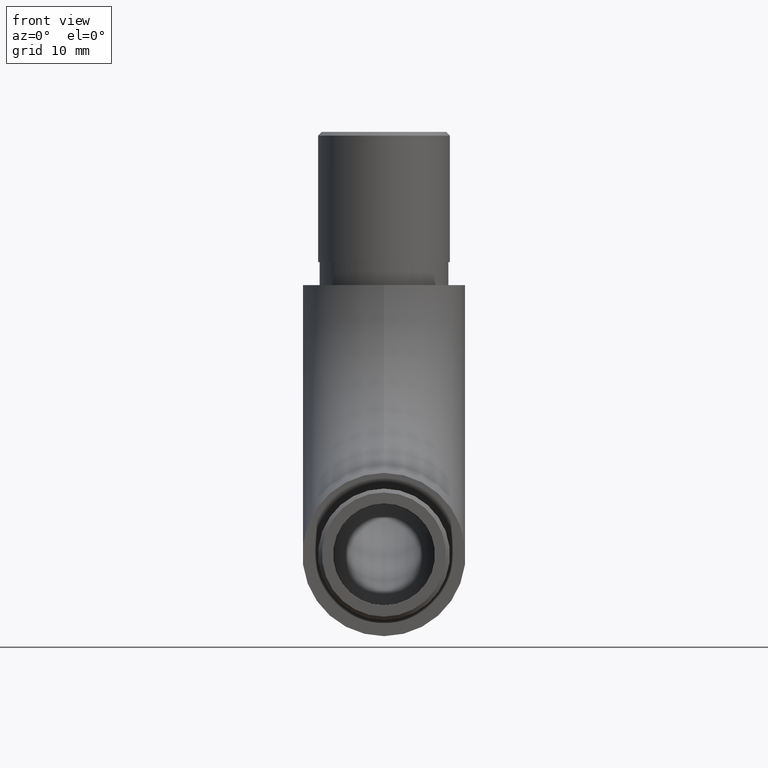
[diagram: clean part render]
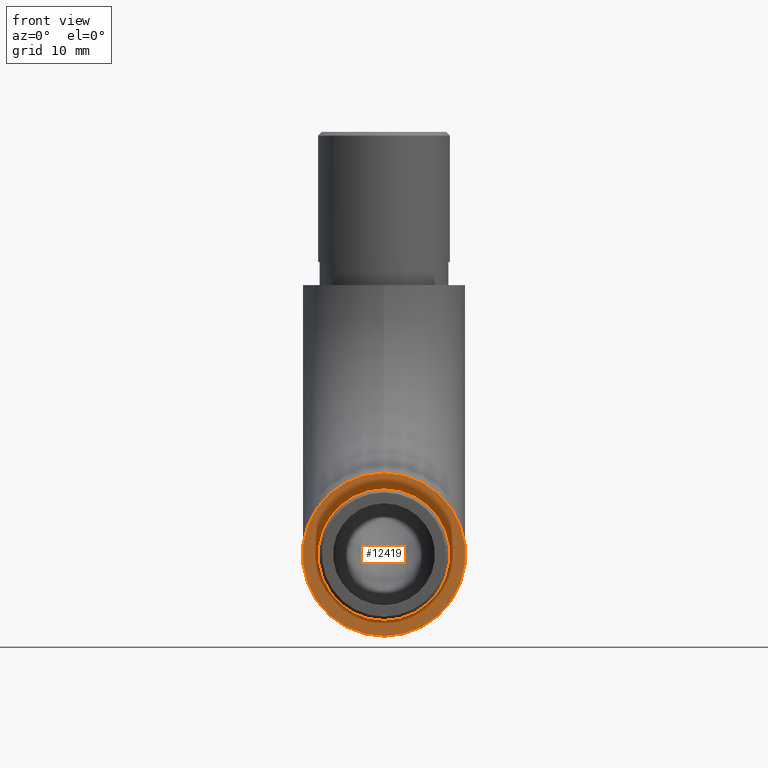
[diagram: same view with one face highlighted and labeled with its STEP entity id]
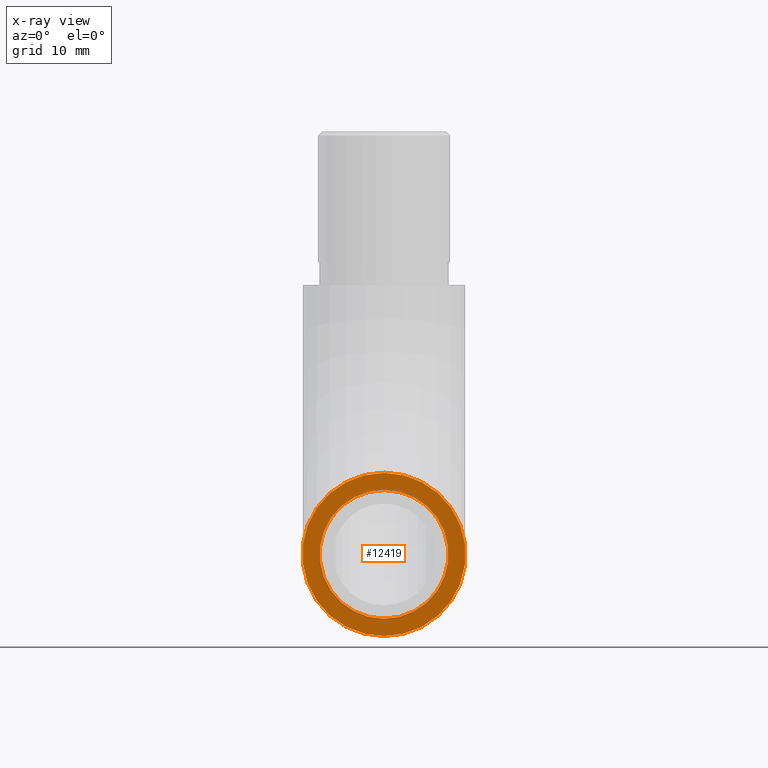
[diagram: x-ray of the same camera — body ghosted, the highlighted face saturated]
A machine part, front view. The second image highlights one B-rep face of the part: STEP entity #12419.
The next image is the same camera in x-ray: the body ghosted, the highlighted face saturated — about 8% of this face is hidden behind the body in this view.
In plain terms, the highlighted planar face has unit normal (0, 1, 0).
Its self-contained STEP definition (entity closure, byte-faithful):
#728 = DIRECTION ( 'NONE',  ( 0.0000000000000000000, 0.0000000000000000000, 1.000000000000000000 ) ) ;
#1218 = DIRECTION ( 'NONE',  ( 0.0000000000000000000, -0.0000000000000000000, 1.000000000000000000 ) ) ;
#1313 = ORIENTED_EDGE ( 'NONE', *, *, #9462, .F. ) ;
#1736 = EDGE_LOOP ( 'NONE', ( #1313 ) ) ;
#2001 = CARTESIAN_POINT ( 'NONE',  ( 0.0000000000000000000, 0.0000000000000000000, 21.30000000000000100 ) ) ;
#2388 = EDGE_LOOP ( 'NONE', ( #9418 ) ) ;
#2571 = AXIS2_PLACEMENT_3D ( 'NONE', #12089, #6203, #1218 ) ;
#3722 = EDGE_CURVE ( 'NONE', #11634, #11634, #6722, .T. ) ;
#3928 = FACE_OUTER_BOUND ( 'NONE', #1736, .T. ) ;
#5049 = CIRCLE ( 'NONE', #10344, 10.65000000000000000 ) ;
#5623 = FACE_BOUND ( 'NONE', #2388, .T. ) ;
#6203 = DIRECTION ( 'NONE',  ( 0.0000000000000000000, 1.000000000000000000, 0.0000000000000000000 ) ) ;
#6722 = CIRCLE ( 'NONE', #8170, 8.400000000000000400 ) ;
#6770 = DIRECTION ( 'NONE',  ( -0.0000000000000000000, -1.000000000000000000, -0.0000000000000000000 ) ) ;
#7292 = CARTESIAN_POINT ( 'NONE',  ( 0.0000000000000000000, 0.0000000000000000000, 10.65000000000000000 ) ) ;
#7650 = VERTEX_POINT ( 'NONE', #2001 ) ;
#7895 = CARTESIAN_POINT ( 'NONE',  ( 0.0000000000000000000, 0.0000000000000000000, 10.65000000000000000 ) ) ;
#8170 = AXIS2_PLACEMENT_3D ( 'NONE', #7895, #6770, #12736 ) ;
#8886 = CARTESIAN_POINT ( 'NONE',  ( 0.0000000000000000000, 0.0000000000000000000, 19.05000000000000100 ) ) ;
#9135 = PLANE ( 'NONE',  #2571 ) ;
#9418 = ORIENTED_EDGE ( 'NONE', *, *, #3722, .F. ) ;
#9462 = EDGE_CURVE ( 'NONE', #7650, #7650, #5049, .T. ) ;
#9556 = DIRECTION ( 'NONE',  ( 0.0000000000000000000, 1.000000000000000000, 0.0000000000000000000 ) ) ;
#10344 = AXIS2_PLACEMENT_3D ( 'NONE', #7292, #9556, #728 ) ;
#11634 = VERTEX_POINT ( 'NONE', #8886 ) ;
#12089 = CARTESIAN_POINT ( 'NONE',  ( 0.0000000000000000000, 0.0000000000000000000, 10.65000000000000000 ) ) ;
#12419 = ADVANCED_FACE ( 'NONE', ( #3928, #5623 ), #9135, .F. ) ;
#12736 = DIRECTION ( 'NONE',  ( 0.0000000000000000000, 0.0000000000000000000, 1.000000000000000000 ) ) ;